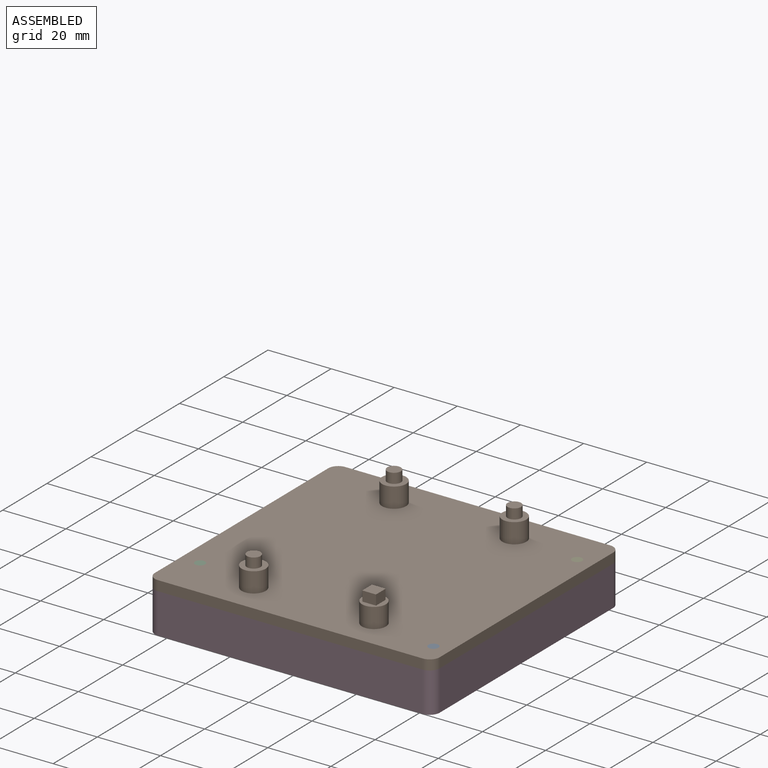
[diagram: assembled view]
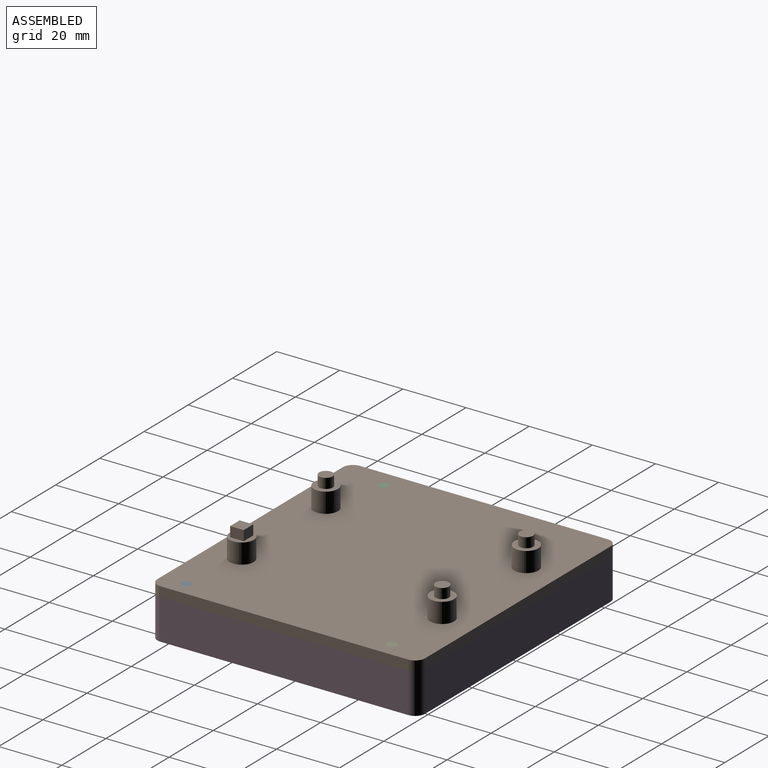
[diagram: assembled view, second angle]
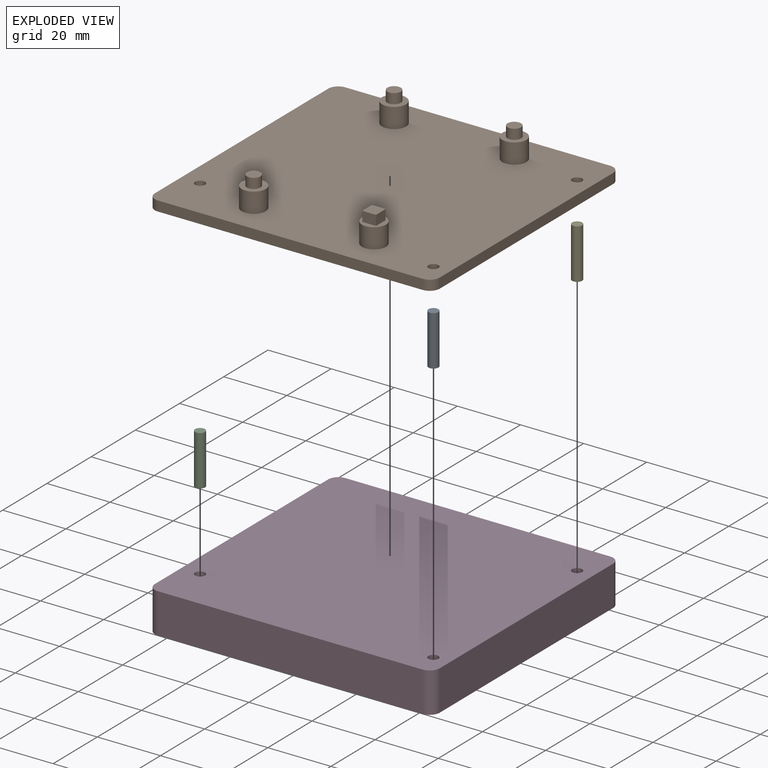
[diagram: exploded view]
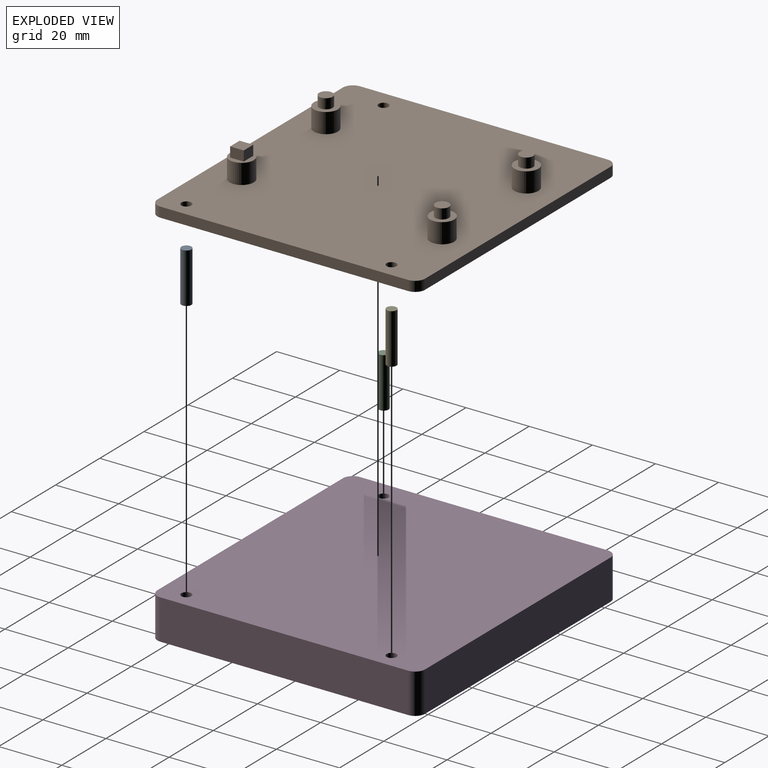
[diagram: exploded view, second angle]
ASSEMBLY  parts=5 mates=4
PART A: 3 faces, bbox 3.2x3.2x15.9 mm
  f0: cylinder r=1.59mm len=15.88mm, axis (0,0,-1), area 158.3mm2, adj f1,f2
  f1: plane 3.18x3.18mm, normal (0,0,1), area 7.9mm2, adj f0
  f2: plane 3.18x3.18mm, normal (0,0,-1), area 7.9mm2, adj f0
PART B: 32 faces, bbox 90.3x84.8x12.7 mm
  f0: plane 7.62x7.62mm, normal (0,0,1), area 27mm2, adj f18,f28,f29,f30,f31
  f1: plane 78.45x3.18mm, normal (-1,0,0), area 249.1mm2, adj f2,f11,f12,f13
  f2: cylinder r=3.17mm len=3.18mm, axis (0,0,-1), area 15.8mm2, adj f1,f3,f12,f13
  f3: plane 83.9x3.18mm, normal (0,-1,0), area 266.4mm2, adj f2,f4,f12,f13
  f4: cylinder r=3.17mm len=3.18mm, axis (0,0,-1), area 15.8mm2, adj f3,f5,f12,f13
  f5: plane 78.45x3.18mm, normal (1,0,0), area 249.1mm2, adj f4,f6,f12,f13
  f6: cylinder r=3.17mm len=3.18mm, axis (0,0,-1), area 15.8mm2, adj f5,f7,f12,f13
  f7: plane 83.9x3.18mm, normal (0,1,0), area 266.4mm2, adj f6,f11,f12,f13
  f8: cylinder r=1.59mm len=3.18mm, axis (0,0,-1), area 31.7mm2, adj f12,f13
  f9: cylinder r=1.59mm len=3.18mm, axis (0,0,-1), area 31.7mm2, adj f12,f13
  f10: cylinder r=1.59mm len=3.18mm, axis (0,0,-1), area 31.7mm2, adj f12,f13
  f11: cylinder r=3.17mm len=3.18mm, axis (0,0,-1), area 15.8mm2, adj f1,f7,f12,f13
  f12: plane 90.25x84.8mm, normal (0,0,1), area 7438.4mm2, adj f1,f2,f3,f4,f5,f6,f7,f8
  f13: plane 90.25x84.8mm, normal (0,0,-1), area 7620.8mm2, adj f1,f2,f3,f4,f5,f6,f7,f8
  f14: cylinder r=3.81mm len=7.62mm, axis (0,0,-1), area 152mm2, adj f12,f15
  f15: plane 7.62x7.62mm, normal (0,0,1), area 31mm2, adj f14,f17
  f16: plane 4.32x4.32mm, normal (0,0,1), area 14.6mm2, adj f17
  f17: cylinder r=2.16mm len=4.32mm, axis (0,0,-1), area 43.1mm2, adj f15,f16
  f18: cylinder r=3.81mm len=7.62mm, axis (0,0,-1), area 152mm2, adj f0,f12
  f19: plane 4.32x4.32mm, normal (0,0,1), area 18.6mm2, adj f28,f29,f30,f31
  f20: cylinder r=3.81mm len=7.62mm, axis (0,0,-1), area 152mm2, adj f12,f21
  f21: plane 7.62x7.62mm, normal (0,0,1), area 31mm2, adj f20,f23
  f22: plane 4.32x4.32mm, normal (0,0,1), area 14.6mm2, adj f23
  f23: cylinder r=2.16mm len=4.32mm, axis (0,0,-1), area 43.1mm2, adj f21,f22
  f24: cylinder r=3.81mm len=7.62mm, axis (0,0,-1), area 152mm2, adj f12,f25
  f25: plane 7.62x7.62mm, normal (0,0,1), area 31mm2, adj f24,f27
  f26: plane 4.32x4.32mm, normal (0,0,1), area 14.6mm2, adj f27
  f27: cylinder r=2.16mm len=4.32mm, axis (0,0,-1), area 43.1mm2, adj f25,f26
  f28: plane 4.32x3.18mm, normal (-1,0,0), area 13.7mm2, adj f0,f19,f29,f30
  f29: plane 4.32x3.18mm, normal (0,-1,0), area 13.7mm2, adj f0,f19,f28,f31
  f30: plane 4.32x3.18mm, normal (0,1,0), area 13.7mm2, adj f0,f19,f28,f31
  f31: plane 4.32x3.18mm, normal (1,0,0), area 13.7mm2, adj f0,f19,f29,f30
PART C: same geometry as A
PART D: 13 faces, bbox 90.3x84.8x12.7 mm
  f0: plane 78.45x12.7mm, normal (-1,0,0), area 996.3mm2, adj f1,f10,f11,f12
  f1: cylinder r=3.17mm len=12.7mm, axis (0,0,-1), area 63.3mm2, adj f0,f2,f11,f12
  f2: plane 83.9x12.7mm, normal (0,-1,0), area 1065.5mm2, adj f1,f3,f11,f12
  f3: cylinder r=3.17mm len=12.7mm, axis (0,0,-1), area 63.3mm2, adj f2,f4,f11,f12
  f4: plane 78.45x12.7mm, normal (1,0,0), area 996.3mm2, adj f3,f5,f11,f12
  f5: cylinder r=3.17mm len=12.7mm, axis (0,0,-1), area 63.3mm2, adj f4,f6,f11,f12
  f6: plane 83.9x12.7mm, normal (0,1,0), area 1065.5mm2, adj f5,f10,f11,f12
  f7: cylinder r=1.59mm len=12.7mm, axis (0,0,-1), area 126.7mm2, adj f11,f12
  f8: cylinder r=1.59mm len=12.7mm, axis (0,0,-1), area 126.7mm2, adj f11,f12
  f9: cylinder r=1.59mm len=12.7mm, axis (0,0,-1), area 126.7mm2, adj f11,f12
  f10: cylinder r=3.17mm len=12.7mm, axis (0,0,-1), area 63.3mm2, adj f0,f6,f11,f12
  f11: plane 90.25x84.8mm, normal (0,0,1), area 7620.8mm2, adj f0,f1,f2,f3,f4,f5,f6,f7
  f12: plane 90.25x84.8mm, normal (0,0,-1), area 7620.8mm2, adj f0,f1,f2,f3,f4,f5,f6,f7
PART E: same geometry as A
PLACE A t=(68.27,-28.8,-26.3)mm
PLACE B t=(19.12,-21.62,-13.6)mm
PLACE C t=(-10.69,-21.62,-26.3)mm
PLACE D t=(22.85,-12.28,-26.3)mm
PLACE E t=(68.27,36.2,-26.3)mm
MATE fastened A.f0 <-> D.f7  axis (0,0,-1) through (61.36,-35.57,-26.3)mm
MATE fastened B.f13 <-> D.f11  axis (0,0,-1) through (21.4,-0.89,-13.6)mm
MATE fastened C.f0 <-> D.f9  axis (0,0,-1) through (-17.59,-28.38,-26.3)mm
MATE fastened E.f0 <-> D.f8  axis (0,0,-1) through (61.36,29.43,-26.3)mm
